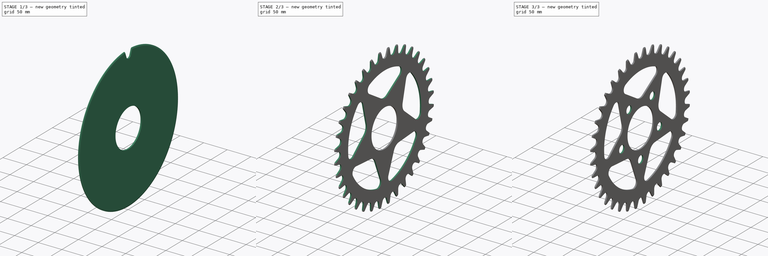
[diagram: build sequence overview — one tinted view per stage of 3, left to right]
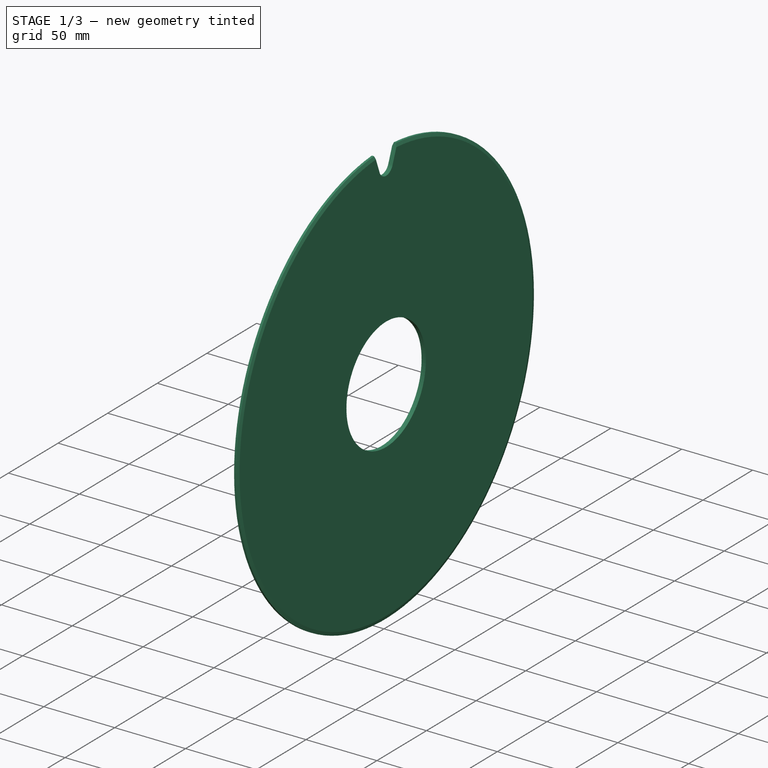
[diagram: stage 1 of 3 — iso view after this stage's code; geometry added in this stage tinted green]
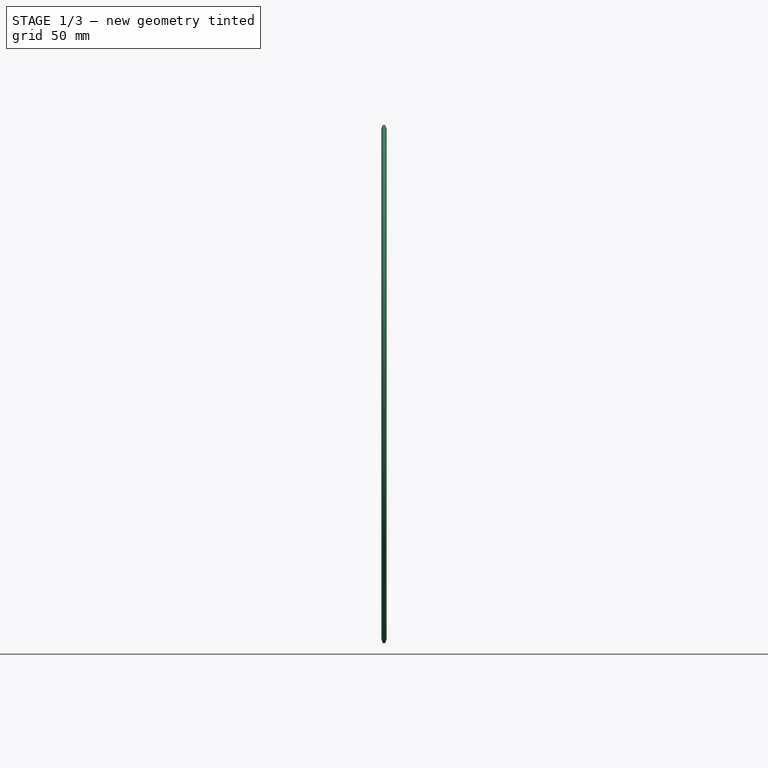
[diagram: stage 1 of 3 — front view after this stage's code; geometry added in this stage tinted green]
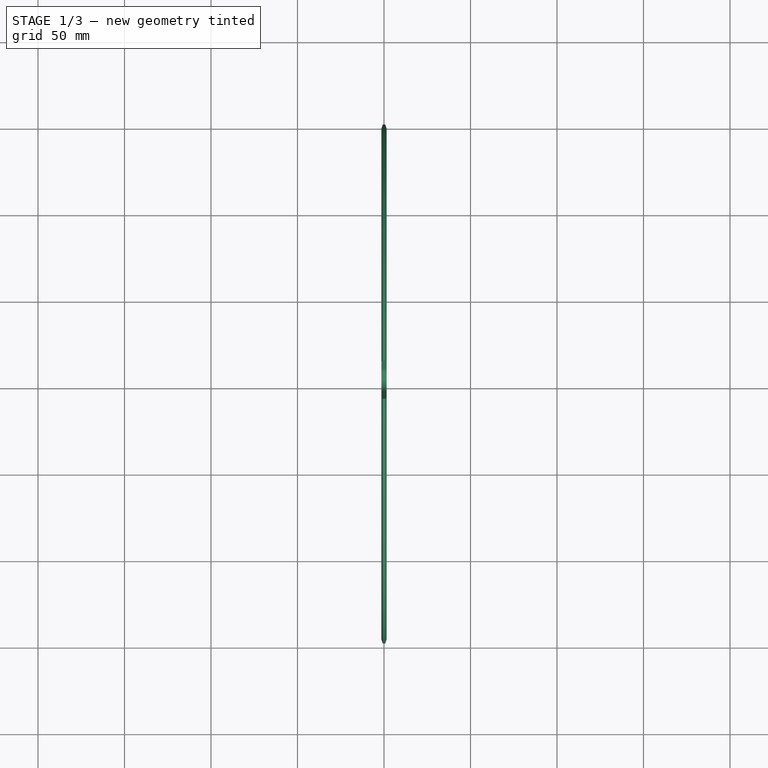
[diagram: stage 1 of 3 — top view after this stage's code; geometry added in this stage tinted green]
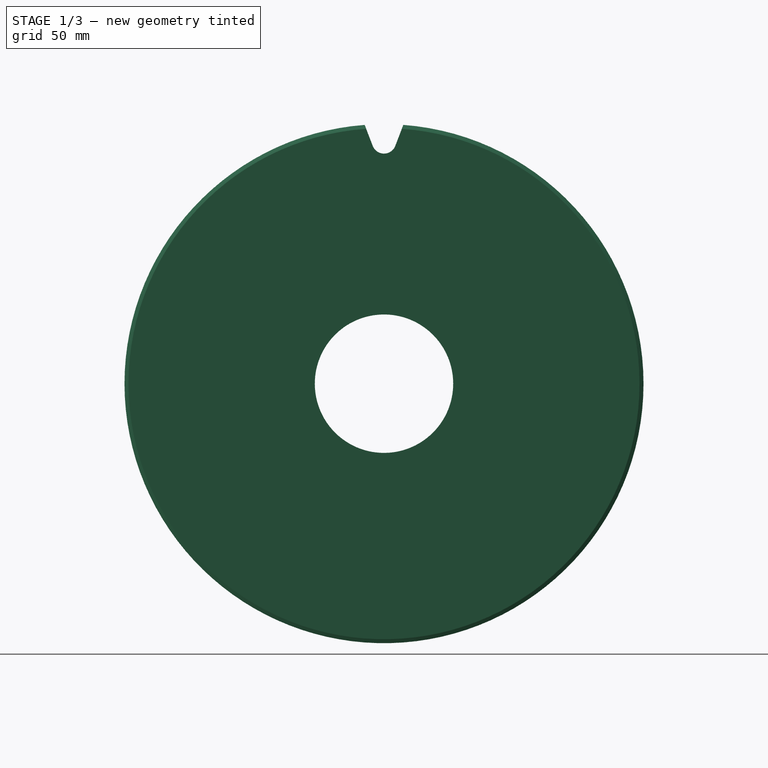
[diagram: stage 1 of 3 — right view after this stage's code; geometry added in this stage tinted green]
FCSTD DOCUMENT  (FreeCAD 0.18R4 (GitTag))
Label: tut2
License: All rights reserved
LicenseURL: http://en.wikipedia.org/wiki/All_rights_reserved
objects: Sketcher::SketchObject×4, PartDesign::Pocket×3, PartDesign::PolarPattern×3, PartDesign::Revolution×1, PartDesign::Body×1
note: 16 computed .brp shape members not serialized (recipe doc carries the construction recipe); baked Part::Feature solids carry a one-line shape summary decoded from their .brp

FEATURE [Sketcher::SketchObject] Sketch
  MapMode = 5
  Support = -> [XY_Plane]
  sketch-geometry (6):
    g0: LineSegment StartX=-1.5 StartY=40 StartZ=0 EndX=-1.5 EndY=147.692 EndZ=0
    g1: LineSegment StartX=-1.5 StartY=147.692 StartZ=0 EndX=-0.75 EndY=150 EndZ=0
    g2: LineSegment StartX=-0.75 StartY=150 StartZ=0 EndX=0.75 EndY=150 EndZ=0
    g3: LineSegment StartX=0.75 StartY=150 StartZ=0 EndX=1.5 EndY=147.692 EndZ=0
    g4: LineSegment StartX=1.5 StartY=147.692 StartZ=0 EndX=1.5 EndY=40 EndZ=0
    g5: LineSegment StartX=1.5 StartY=40 StartZ=0 EndX=-1.5 EndY=40 EndZ=0
  constraints (15):
    c: Vertical(g0)
    c: Coincident(g0,g1)
    c: Coincident(g1,g2)
    c: Coincident(g2,g3)
    c: Coincident(g3,g4)
    c: Coincident(g4,g5)
    c: Coincident(g5,g0)
    c: Symmetric(g2,g1,g-2)
    c: Symmetric(g0,g3,g-2)
    c: Symmetric(g0,g4,g-2)
    c: DistanceX(g0,g4) = 3
    c: DistanceX(g2,g2) = 1.5
    c: DistanceY(g4) = 40
    c: Angle(g0,g1) = 2.82743
    c: DistanceY(g2) = 150
FEATURE [PartDesign::Revolution] Revolution
  Angle = 360
  Axis = (1,0,0)
  Base = (0,0,0)
  Profile = -> Sketch
  ReferenceAxis = -> Sketch [H_Axis]
FEATURE [Sketcher::SketchObject] Sketch001
  MapMode = 5
  Placement = pos=(-1.5,0,0) rot=(0.57735,-0.57735,-0.57735;2.0944rad)
  Support = -> [Revolution]
  sketch-geometry (6):
    g0: ArcOfCircle CenterX=-1e-16 CenterY=140 CenterZ=0 NormalX=0 NormalY=0 NormalZ=1 AngleXU=0 Radius=7 StartAngle=3.50867 EndAngle=5.91611
    g1: LineSegment StartX=6.53366 StartY=137.488 StartZ=0 EndX=9.5 EndY=145.203 EndZ=0
    g2: LineSegment StartX=9.5 StartY=145.203 StartZ=0 EndX=13 EndY=154.57 EndZ=0
    g3: LineSegment StartX=13 StartY=154.57 StartZ=0 EndX=-13 EndY=154.57 EndZ=0
    g4: LineSegment StartX=-13 StartY=154.57 StartZ=0 EndX=-9.5 EndY=145.203 EndZ=0
    g5: LineSegment StartX=-6.53366 StartY=137.488 StartZ=0 EndX=-9.5 EndY=145.203 EndZ=0
  constraints (15):
    c: Coincident(g1,g2)
    c: Coincident(g2,g3)
    c: Coincident(g3,g4)
    c: Coincident(g5,g4)
    c: Coincident(g0,g5)
    c: Symmetric(g0,g0,g-2)
    c: Symmetric(g4,g1,g-2)
    c: Symmetric(g2,g3,g-2)
    c: Radius(g0) = 7
    c: DistanceX(g4) = -9.5
    c: DistanceX(g2) = 13
    c: DistanceY(g0) = 140
    c: Distance(g2) = 10
    c: Tangent(g1,g0) = -1.5708
    c: DistanceY(g3) = 154.57
FEATURE [PartDesign::Pocket] Pocket
  BaseFeature = -> Revolution
  Length = 5
  Length2 = 100
  Profile = -> Sketch001
  Type = 1
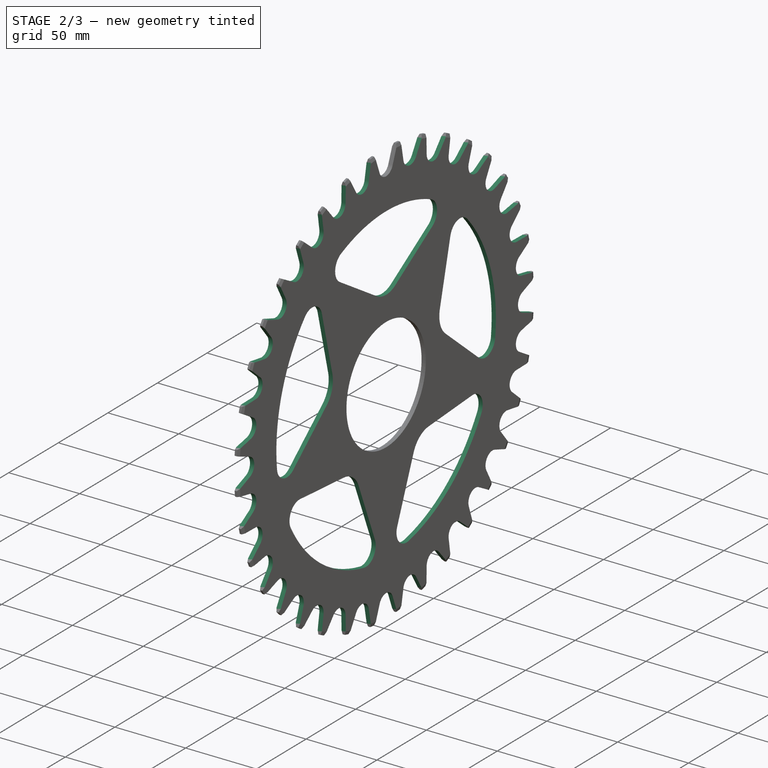
[diagram: stage 2 of 3 — iso view after this stage's code; geometry added in this stage tinted green]
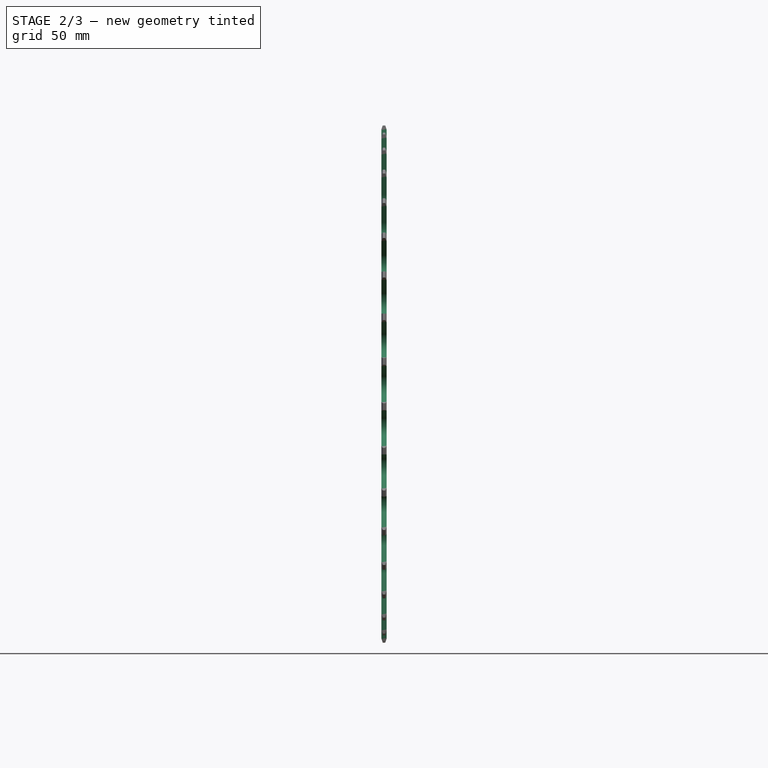
[diagram: stage 2 of 3 — front view after this stage's code; geometry added in this stage tinted green]
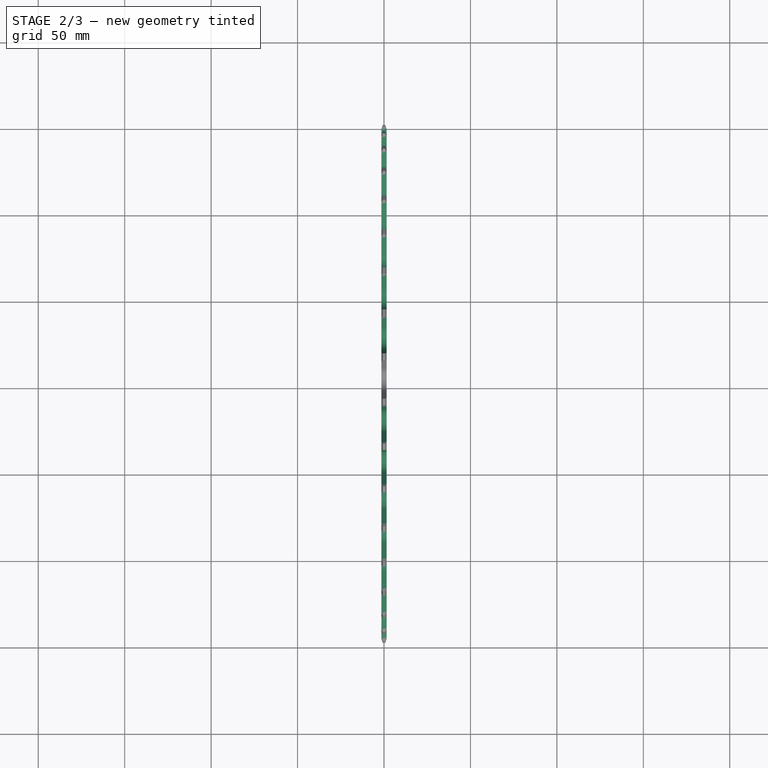
[diagram: stage 2 of 3 — top view after this stage's code; geometry added in this stage tinted green]
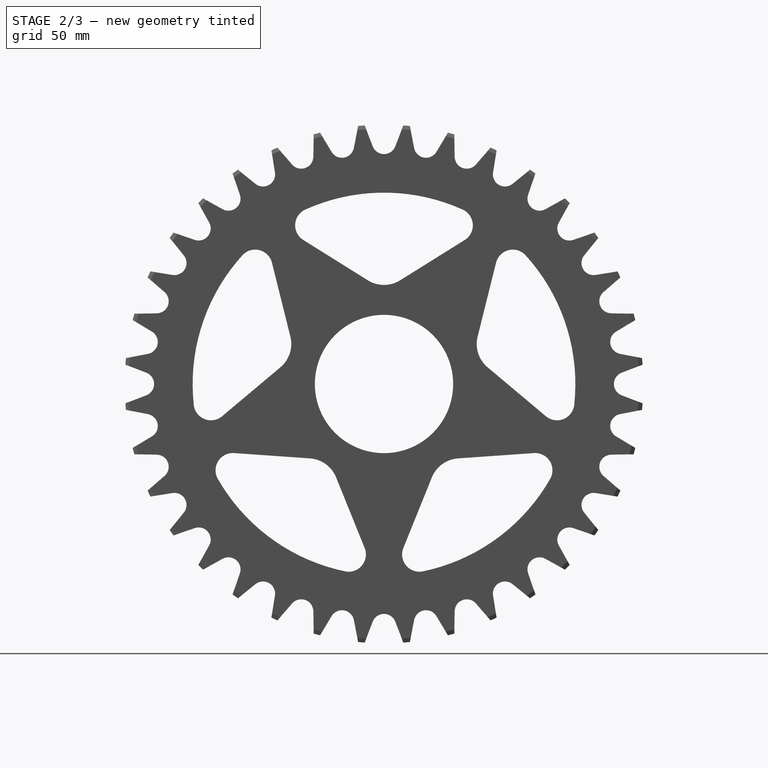
[diagram: stage 2 of 3 — right view after this stage's code; geometry added in this stage tinted green]
FEATURE [PartDesign::PolarPattern] PolarPattern
  Angle = 360
  Axis = -> Sketch001 [N_Axis]
  BaseFeature = -> Pocket
  Occurrences = 36
  Originals = -> [Pocket]
FEATURE [Sketcher::SketchObject] Sketch002
  MapMode = 5
  Placement = pos=(-1.5,0,0) rot=(0.57735,-0.57735,-0.57735;2.0944rad)
  Support = -> [PolarPattern]
  sketch-geometry (6):
    g0: ArcOfCircle CenterX=0 CenterY=0 CenterZ=0 NormalX=0 NormalY=0 NormalZ=1 AngleXU=0 Radius=110.692 StartAngle=1.14719 EndAngle=1.9944
    g1: ArcOfCircle CenterX=-41.3895 CenterY=91.7924 CenterZ=0 NormalX=0 NormalY=0 NormalZ=1 AngleXU=0 Radius=10 StartAngle=1.9944 EndAngle=4.15402
    g2: ArcOfCircle CenterX=2.8e-15 CenterY=75 CenterZ=0 NormalX=0 NormalY=0 NormalZ=1 AngleXU=0 Radius=17.6861 StartAngle=4.15402 EndAngle=5.27075
    g3: ArcOfCircle CenterX=41.3895 CenterY=91.7924 CenterZ=0 NormalX=0 NormalY=0 NormalZ=1 AngleXU=0 Radius=10 StartAngle=5.27075 EndAngle=7.43038
    g4: LineSegment StartX=9.3701 StartY=60 StartZ=0 EndX=46.6875 EndY=83.3112 EndZ=0
    g5: LineSegment StartX=-46.6875 StartY=83.3112 StartZ=0 EndX=-9.3701 EndY=60 EndZ=0
  constraints (16):
    c: Coincident(g0,g-1)
    c: Coincident(g4,g2)
    c: Coincident(g4,g3)
    c: Tangent(g1,g0) = -1.5708
    c: Symmetric(g0,g0,g-2)
    c: Symmetric(g1,g3,g-2)
    c: Symmetric(g1,g3,g-2)
    c: Symmetric(g2,g2,g-2)
    c: Radius(g3) = 10
    c: Tangent(g5,g1) = -1.5708
    c: Tangent(g5,g2) = -1.5708
    c: DistanceY(g2) = 75
    c: DistanceX(g0) = -45.5
    c: Distance(g5) = 44
    c: DistanceY(g2) = 60
    c: Coincident(g3,g0)
FEATURE [PartDesign::Pocket] Pocket001
  BaseFeature = -> PolarPattern
  Length = 5
  Length2 = 100
  Profile = -> Sketch002
  Type = 1
FEATURE [PartDesign::PolarPattern] PolarPattern001
  Angle = 360
  Axis = -> Sketch002 [N_Axis]
  BaseFeature = -> Pocket001
  Occurrences = 5
  Originals = -> [Pocket001]
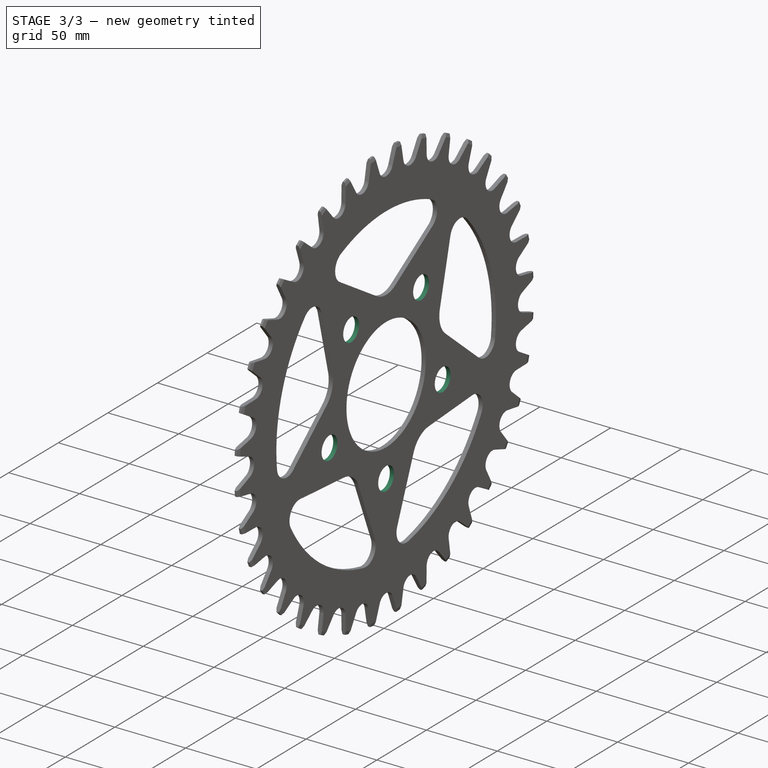
[diagram: stage 3 of 3 — iso view after this stage's code; geometry added in this stage tinted green]
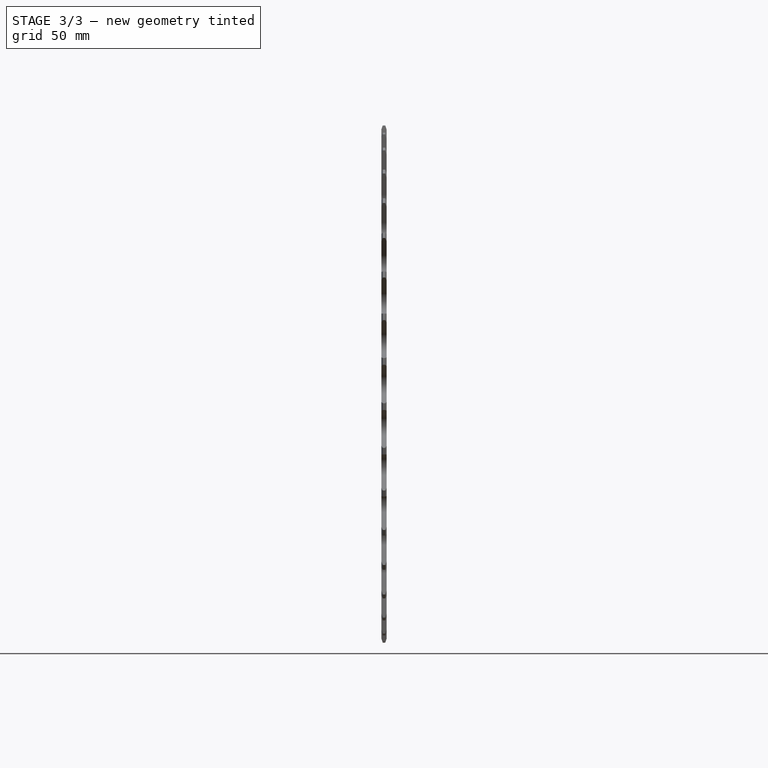
[diagram: stage 3 of 3 — front view after this stage's code; geometry added in this stage tinted green]
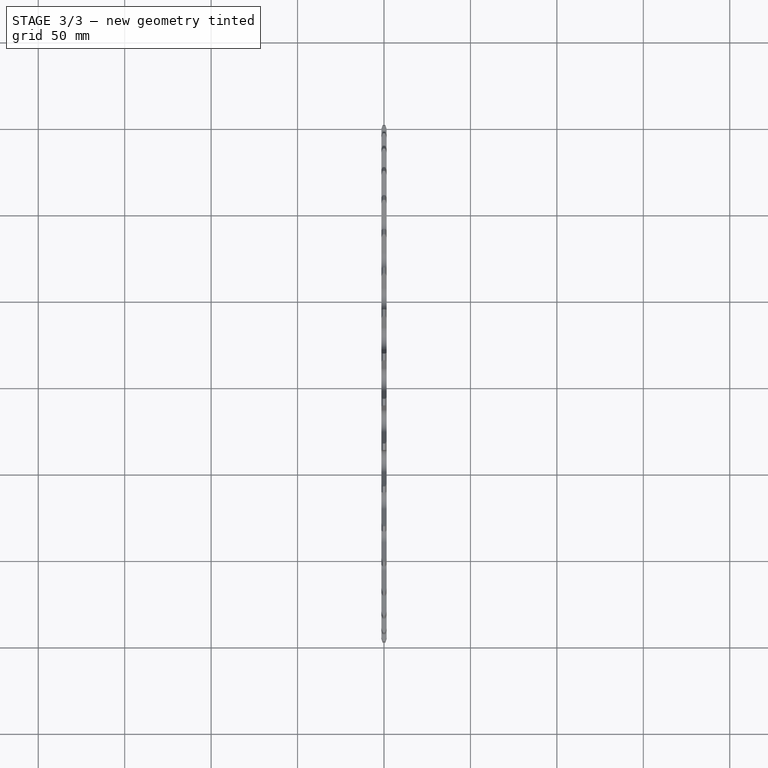
[diagram: stage 3 of 3 — top view after this stage's code; geometry added in this stage tinted green]
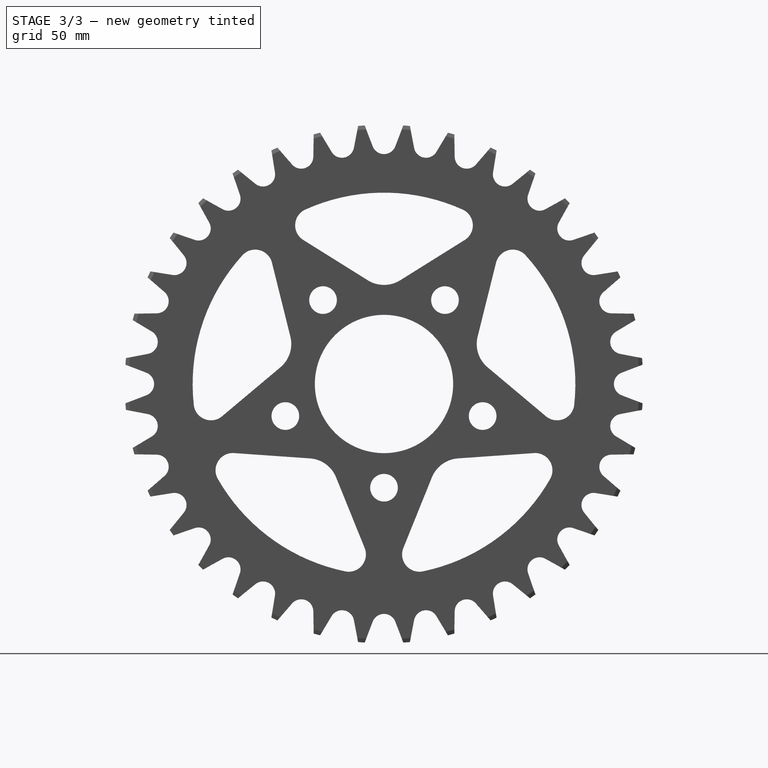
[diagram: stage 3 of 3 — right view after this stage's code; geometry added in this stage tinted green]
FEATURE [Sketcher::SketchObject] Sketch003
  MapMode = 5
  Placement = pos=(-1.5,0,0) rot=(0.57735,-0.57735,-0.57735;2.0944rad)
  Support = -> [PolarPattern001]
  sketch-geometry (3):
    g0: LineSegment [constr] StartX=0 StartY=0 StartZ=0 EndX=-109.201 EndY=150.303 EndZ=0
    g1: Circle CenterX=-35.2671 CenterY=48.541 CenterZ=0 NormalX=0 NormalY=0 NormalZ=1 AngleXU=0 Radius=8
    g2: Circle [constr] CenterX=0 CenterY=0 CenterZ=0 NormalX=0 NormalY=0 NormalZ=1 AngleXU=0 Radius=60
  constraints (8):
    c: Coincident(g0,g-1)
    c: Angle(g-2,g0) = 0.628319
    c: DistanceX(g0) = -109.201
    c: PointOnObject(g1,g0)
    c: Coincident(g2,g-1)
    c: PointOnObject(g1,g2)
    c: Radius(g2) = 60
    c: Radius(g1) = 8
FEATURE [PartDesign::Pocket] Pocket002
  BaseFeature = -> PolarPattern001
  Length = 5
  Length2 = 100
  Profile = -> Sketch003
  Type = 1
FEATURE [PartDesign::PolarPattern] PolarPattern002
  Angle = 360
  Axis = -> Sketch003 [N_Axis]
  BaseFeature = -> Pocket002
  Occurrences = 5
  Originals = -> [Pocket002]
FEATURE [PartDesign::Body] Body
  Group = -> [Sketch,Revolution,Sketch001,Pocket,PolarPattern,Sketch002,Pocket001,PolarPattern001,Sketch003,Pocket002,PolarPattern002]
  Origin = -> Origin
  Tip = -> PolarPattern002
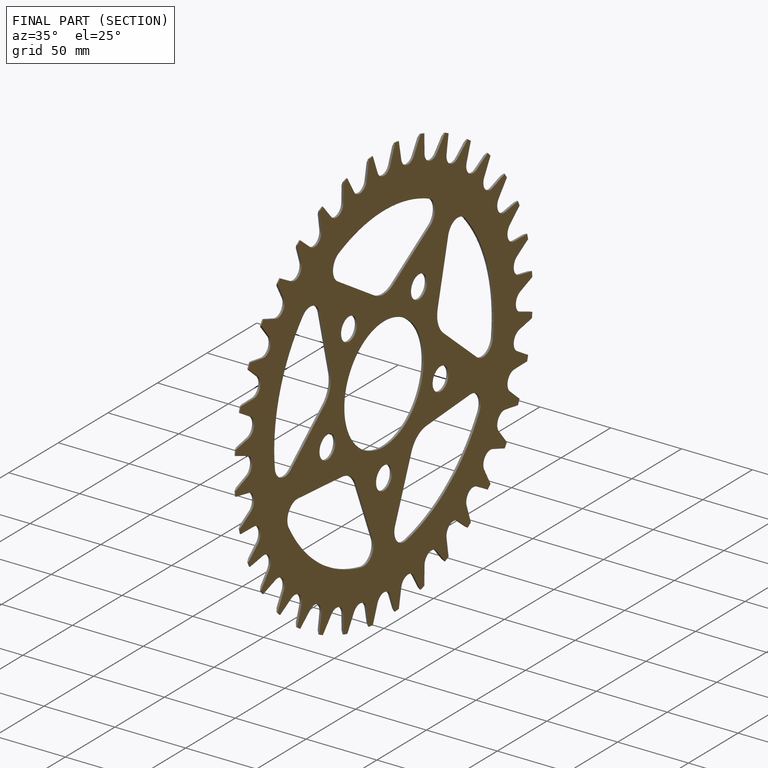
[diagram: finished part — half-section view (interior)]
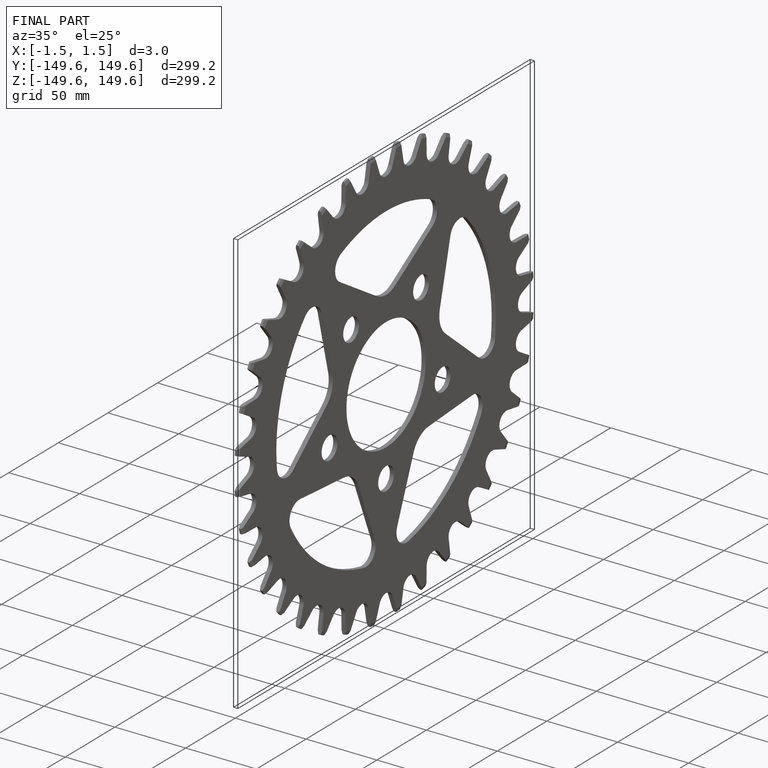
[diagram: finished part — iso view with bounding-box wireframe]
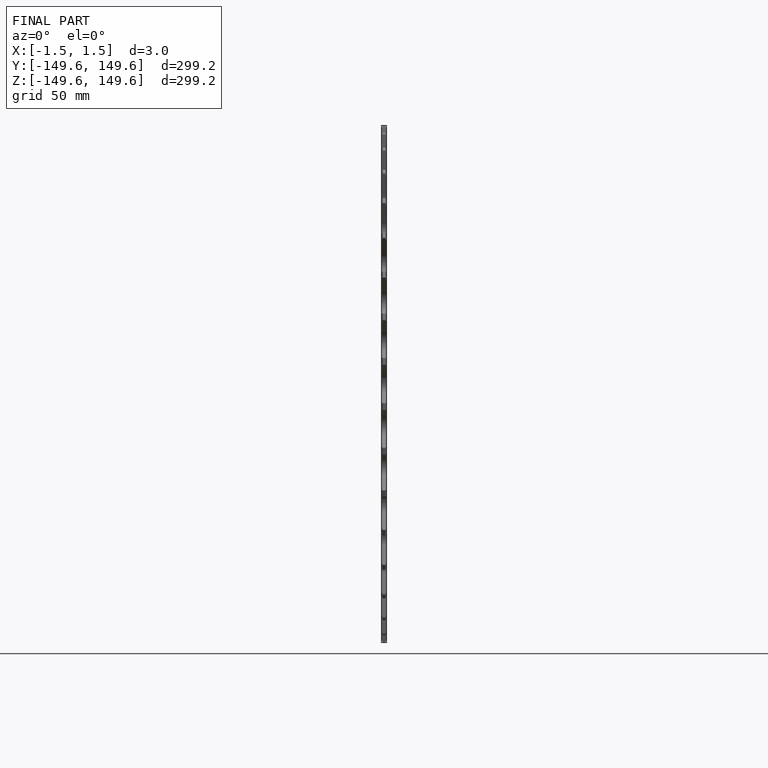
[diagram: finished part — front view with bounding-box wireframe]
